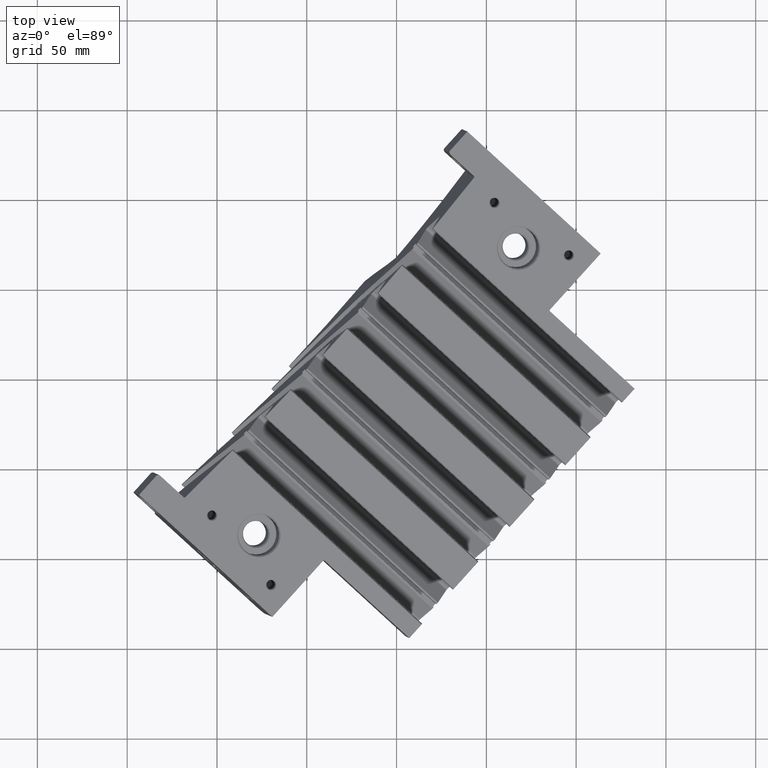
[diagram: clean part render]
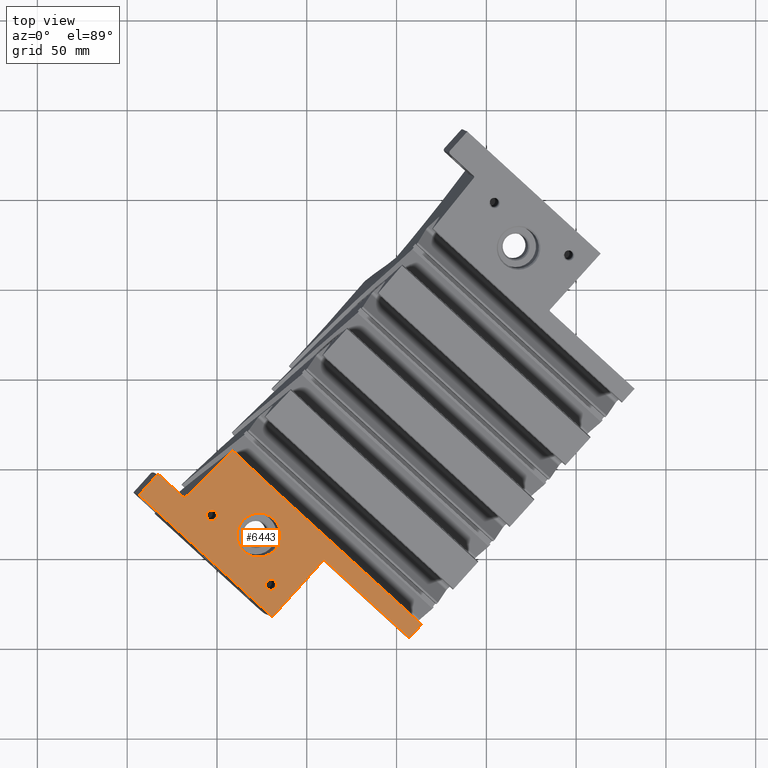
[diagram: same view with one face highlighted and labeled with its STEP entity id]
A machine part, top view. The second image highlights one B-rep face of the part: STEP entity #6443.
In plain terms, the highlighted planar face has unit normal (-0.1313, 0.074, -0.9886).
Its self-contained STEP definition (entity closure, byte-faithful):
#12=CARTESIAN_POINT('',(8.753336438268E1,-3.298400474719E1,-4.344912789584E0));
#13=DIRECTION('',(-1.313055912949E-1,7.400472631934E-2,-9.885758150881E-1));
#14=DIRECTION('',(6.696621439939E-1,7.419141415703E-1,-3.340687712718E-2));
#15=AXIS2_PLACEMENT_3D('',#12,#13,#14);
#17=CARTESIAN_POINT('',(8.753336438268E1,-3.298400474719E1,-4.344912789584E0));
#18=DIRECTION('',(-1.313055912949E-1,7.400472631934E-2,-9.885758150881E-1));
#19=DIRECTION('',(-6.696621439945E-1,-7.419141415698E-1,3.340687712730E-2));
#20=AXIS2_PLACEMENT_3D('',#17,#18,#19);
#22=CARTESIAN_POINT('',(8.650376766333E1,-3.255251144605E1,-4.175814805190E0));
#23=DIRECTION('',(-1.313055912949E-1,7.400472631934E-2,-9.885758150881E-1));
#24=DIRECTION('',(-6.696621439944E-1,-7.419141415699E-1,3.340687712727E-2));
#25=AXIS2_PLACEMENT_3D('',#22,#23,#24);
#27=CARTESIAN_POINT('',(8.650376766333E1,-3.255251144605E1,-4.175814805190E0));
#28=DIRECTION('',(-1.313055912949E-1,7.400472631934E-2,-9.885758150881E-1));
#29=DIRECTION('',(6.696621439947E-1,7.419141415696E-1,-3.340687712733E-2));
#30=AXIS2_PLACEMENT_3D('',#27,#28,#29);
#32=CARTESIAN_POINT('',(8.779828434819E1,-3.407078660061E1,-4.461414363391E0));
#33=DIRECTION('',(-1.313055912949E-1,7.400472631934E-2,-9.885758150881E-1));
#34=DIRECTION('',(-6.696621439950E-1,-7.419141415694E-1,3.340687712739E-2));
#35=AXIS2_PLACEMENT_3D('',#32,#33,#34);
#37=CARTESIAN_POINT('',(8.779828434819E1,-3.407078660061E1,-4.461414363391E0));
#38=DIRECTION('',(-1.313055912949E-1,7.400472631934E-2,-9.885758150881E-1));
#39=DIRECTION('',(6.696621439947E-1,7.419141415696E-1,-3.340687712733E-2));
#40=AXIS2_PLACEMENT_3D('',#37,#38,#39);
#128=DIRECTION('',(-7.309661104288E-1,6.663983095875E-1,1.469756387416E-1));
#129=VECTOR('',#128,7.038443905521E-1);
#130=CARTESIAN_POINT('',(8.588194484511E1,-3.215467208433E1,-4.063519157773E0));
#131=LINE('',#130,#129);
#132=CARTESIAN_POINT('',(8.695618020416E1,-3.112617170631E1,-4.129216370849E0));
#133=CARTESIAN_POINT('',(8.678614468745E1,-3.129857684639E1,-4.119537984315E0));
#134=CARTESIAN_POINT('',(8.644388152746E1,-3.164225064717E1,-4.099793656507E0));
#135=CARTESIAN_POINT('',(8.609712421940E1,-3.198367046587E1,-4.079298753796E0));
#136=CARTESIAN_POINT('',(8.592262389660E1,-3.215379901717E1,-4.068856913089E0));
#138=CARTESIAN_POINT('',(8.784601561369E1,-3.196301894637E1,-4.310046527079E0));
#139=CARTESIAN_POINT('',(8.781019330036E1,-3.193005883223E1,-4.302821108298E0));
#140=CARTESIAN_POINT('',(8.767895954602E1,-3.180926216076E1,-4.276345470156E0));
#141=CARTESIAN_POINT('',(8.744832683244E1,-3.159565521732E1,-4.229725050467E0));
#142=CARTESIAN_POINT('',(8.718015866429E1,-3.134185294332E1,-4.175098235428E0));
#143=CARTESIAN_POINT('',(8.701678143721E1,-3.118473684136E1,-4.141649790058E0));
#144=CARTESIAN_POINT('',(8.695618020416E1,-3.112617170631E1,-4.129216370849E0));
#146=DIRECTION('',(-7.309663976861E-1,6.663980287566E-1,1.469754834082E-1));
#147=VECTOR('',#146,4.454470248727E0);
#148=CARTESIAN_POINT('',(9.110208368501E1,-3.493146913928E1,-4.964744445213E0));
#149=LINE('',#148,#147);
#150=DIRECTION('',(-7.309661104288E-1,6.663983095875E-1,1.469756387416E-1));
#151=VECTOR('',#150,2.5325E0);
#152=CARTESIAN_POINT('',(9.083208160966E1,-3.523060260493E1,-4.951275076762E0));
#153=LINE('',#152,#151);
#154=DIRECTION('',(-6.696621439945E-1,-7.419141415698E-1,3.340687712729E-2));
#155=VECTOR('',#154,5.65E-1);
#156=CARTESIAN_POINT('',(8.528342075334E1,-3.169016232218E1,-3.949248227945E0));
#157=LINE('',#156,#155);
#158=CARTESIAN_POINT('',(8.532727871996E1,-3.173014622075E1,-3.958066766269E0));
#159=DIRECTION('',(1.313055912949E-1,-7.400472631934E-2,9.885758150881E-1));
#160=DIRECTION('',(6.696621439947E-1,7.419141415696E-1,-3.340687712733E-2));
#161=AXIS2_PLACEMENT_3D('',#158,#159,#160);
#428=DIRECTION('',(6.696621439945E-1,7.419141415698E-1,-3.340687712730E-2));
#429=VECTOR('',#428,1.6575E0);
#430=CARTESIAN_POINT('',(8.782892608370E1,-3.477493705051E1,-4.518275897334E0));
#431=LINE('',#430,#429);
#475=CARTESIAN_POINT('',(8.896082007068E1,-3.356520631015E1,-4.578057065335E0));
#476=DIRECTION('',(-1.313055912949E-1,7.400472631933E-2,-9.885758150881E-1));
#477=DIRECTION('',(-7.309661104268E-1,6.663983095897E-1,1.469756387415E-1));
#478=AXIS2_PLACEMENT_3D('',#475,#476,#477);
#748=DIRECTION('',(-6.696621439945E-1,-7.419141415698E-1,3.340687712730E-2));
#749=VECTOR('',#748,4.031914865822E-1);
#750=CARTESIAN_POINT('',(9.110208368501E1,-3.493146913928E1,-4.964744445213E0));
#751=LINE('',#750,#749);
#1277=CARTESIAN_POINT('',(8.695618020416E1,-3.112617170631E1,
-4.129216370849E0));
#1283=CARTESIAN_POINT('',(8.592262389660E1,-3.215379901717E1,
-4.068856913089E0));
#2397=DIRECTION('',(7.309661104288E-1,-6.663983095875E-1,-1.469756387416E-1));
#2398=VECTOR('',#2397,4.E0);
#2399=CARTESIAN_POINT('',(8.490506164198E1,-3.210934381216E1,
-3.930373342368E0));
#2400=LINE('',#2399,#2398);
#3340=CARTESIAN_POINT('',(8.592262389660E1,-3.215379901717E1,
-4.068856913089E0));
#3341=CARTESIAN_POINT('',(8.591871771969E1,-3.215760733229E1,
-4.068623173252E0));
#3342=CARTESIAN_POINT('',(8.591012099088E1,-3.216240484990E1,
-4.067840471945E0));
#3343=CARTESIAN_POINT('',(8.589450021941E1,-3.216269408672E1,
-4.065787326691E0));
#3344=CARTESIAN_POINT('',(8.588589285443E1,-3.215827135755E1,
-4.064312985536E0));
#3345=CARTESIAN_POINT('',(8.588194484511E1,-3.215467208433E1,
-4.063519157773E0));
#3369=CARTESIAN_POINT('',(8.588194484511E1,-3.215467208433E1,
-4.063519157773E0));
#5392=CARTESIAN_POINT('',(8.490506164198E1,-3.210934381216E1,
-3.930373342368E0));
#5393=CARTESIAN_POINT('',(8.782892608370E1,-3.477493705051E1,
-4.518275897334E0));
#5394=VERTEX_POINT('',#5392);
#5395=VERTEX_POINT('',#5393);
#5451=CARTESIAN_POINT('',(8.785686030393E1,-3.262560581294E1,
-4.361050760932E0));
#5452=CARTESIAN_POINT('',(8.720986846142E1,-3.334240368145E1,
-4.328774818236E0));
#5453=VERTEX_POINT('',#5451);
#5454=VERTEX_POINT('',#5452);
#5589=CARTESIAN_POINT('',(9.083208160966E1,-3.523060260493E1,
-4.951275076762E0));
#5590=VERTEX_POINT('',#5589);
#5607=CARTESIAN_POINT('',(8.536745844860E1,-3.168563137226E1,
-3.960071178897E0));
#5608=CARTESIAN_POINT('',(8.528342075334E1,-3.169016232218E1,
-3.949248227945E0));
#5609=VERTEX_POINT('',#5607);
#5610=VERTEX_POINT('',#5608);
#5621=CARTESIAN_POINT('',(8.642314168088E1,-3.264183642447E1,
-4.171792684015E0));
#5622=CARTESIAN_POINT('',(8.658439364578E1,-3.246318646763E1,
-4.179836926364E0));
#5623=VERTEX_POINT('',#5621);
#5624=VERTEX_POINT('',#5622);
#5629=CARTESIAN_POINT('',(8.771765836573E1,-3.416011157903E1,
-4.457392242216E0));
#5630=CARTESIAN_POINT('',(8.787891033064E1,-3.398146162219E1,
-4.465436484565E0));
#5631=VERTEX_POINT('',#5629);
#5632=VERTEX_POINT('',#5630);
#5685=CARTESIAN_POINT('',(8.898090993500E1,-3.354294888590E1,
-4.579059271649E0));
#5686=VERTEX_POINT('',#5685);
#5687=CARTESIAN_POINT('',(8.893889108737E1,-3.354521436086E1,
-4.573647796173E0));
#5688=VERTEX_POINT('',#5687);
#5832=VERTEX_POINT('',#3369);
#5833=VERTEX_POINT('',#1283);
#5855=VERTEX_POINT('',#1277);
#5858=VERTEX_POINT('',#138);
#5860=CARTESIAN_POINT('',(9.110208368501E1,-3.493146913928E1,
-4.964744445213E0));
#5862=VERTEX_POINT('',#5860);
#6394=CARTESIAN_POINT('',(9.690830299900E1,-2.851375952336E1,
-5.255514472258E0));
#6395=DIRECTION('',(-1.313055912949E-1,7.400472631934E-2,-9.885758150881E-1));
#6396=DIRECTION('',(-7.309661104288E-1,6.663983095875E-1,1.469756387416E-1));
#6397=AXIS2_PLACEMENT_3D('',#6394,#6395,#6396);
#6398=PLANE('',#6397);
#6400=ORIENTED_EDGE('',*,*,#6399,.F.);
#6402=ORIENTED_EDGE('',*,*,#6401,.F.);
#6404=ORIENTED_EDGE('',*,*,#6403,.F.);
#6406=ORIENTED_EDGE('',*,*,#6405,.F.);
#6408=ORIENTED_EDGE('',*,*,#6407,.F.);
#6410=ORIENTED_EDGE('',*,*,#6409,.T.);
#6412=ORIENTED_EDGE('',*,*,#6411,.T.);
#6414=ORIENTED_EDGE('',*,*,#6413,.F.);
#6416=ORIENTED_EDGE('',*,*,#6415,.F.);
#6418=ORIENTED_EDGE('',*,*,#6417,.F.);
#6420=ORIENTED_EDGE('',*,*,#6419,.F.);
#6422=ORIENTED_EDGE('',*,*,#6421,.F.);
#6423=EDGE_LOOP('',(#6400,#6402,#6404,#6406,#6408,#6410,#6412,#6414,#6416,#6418,
#6420,#6422));
#6424=FACE_OUTER_BOUND('',#6423,.F.);
#6426=ORIENTED_EDGE('',*,*,#6425,.F.);
#6428=ORIENTED_EDGE('',*,*,#6427,.F.);
#6429=EDGE_LOOP('',(#6426,#6428));
#6430=FACE_BOUND('',#6429,.F.);
#6432=ORIENTED_EDGE('',*,*,#6431,.F.);
#6434=ORIENTED_EDGE('',*,*,#6433,.F.);
#6435=EDGE_LOOP('',(#6432,#6434));
#6436=FACE_BOUND('',#6435,.F.);
#6438=ORIENTED_EDGE('',*,*,#6437,.F.);
#6440=ORIENTED_EDGE('',*,*,#6439,.F.);
#6441=EDGE_LOOP('',(#6438,#6440));
#6442=FACE_BOUND('',#6441,.F.);
#6443=ADVANCED_FACE('',(#6424,#6430,#6436,#6442),#6398,.F.);
#16=CIRCLE('',#15,4.830733290750E-1);
#21=CIRCLE('',#20,4.830733290752E-1);
#26=CIRCLE('',#25,1.203979994656E-1);
#31=CIRCLE('',#30,1.203979994656E-1);
#36=CIRCLE('',#35,1.203979994656E-1);
#41=CIRCLE('',#40,1.203979994656E-1);
#137=B_SPLINE_CURVE_WITH_KNOTS('',3,(#132,#133,#134,#135,#136),.UNSPECIFIED.,
.F.,.F.,(4,1,4),(0.E0,5.E-1,1.E0),.UNSPECIFIED.);
#145=B_SPLINE_CURVE_WITH_KNOTS('',3,(#138,#139,#140,#141,#142,#143,#144),
.UNSPECIFIED.,.F.,.F.,(4,1,1,1,4),(0.E0,1.264592233721E-1,4.616793886711E-1,
7.968995539701E-1,1.E0),.UNSPECIFIED.);
#162=CIRCLE('',#161,6.E-2);
#479=CIRCLE('',#478,3.E-2);
#3346=B_SPLINE_CURVE_WITH_KNOTS('',3,(#3340,#3341,#3342,#3343,#3344,#3345),
.UNSPECIFIED.,.F.,.F.,(4,1,1,4),(0.E0,3.333333333333E-1,6.666666666667E-1,1.E0),
.UNSPECIFIED.);
#6399=EDGE_CURVE('',#5832,#5609,#131,.T.);
#6401=EDGE_CURVE('',#5833,#5832,#3346,.T.);
#6403=EDGE_CURVE('',#5855,#5833,#137,.T.);
#6405=EDGE_CURVE('',#5858,#5855,#145,.T.);
#6407=EDGE_CURVE('',#5862,#5858,#149,.T.);
#6409=EDGE_CURVE('',#5862,#5590,#751,.T.);
#6411=EDGE_CURVE('',#5590,#5686,#153,.T.);
#6413=EDGE_CURVE('',#5688,#5686,#479,.T.);
#6415=EDGE_CURVE('',#5395,#5688,#431,.T.);
#6417=EDGE_CURVE('',#5394,#5395,#2400,.T.);
#6419=EDGE_CURVE('',#5610,#5394,#157,.T.);
#6421=EDGE_CURVE('',#5609,#5610,#162,.T.);
#6425=EDGE_CURVE('',#5453,#5454,#16,.T.);
#6427=EDGE_CURVE('',#5454,#5453,#21,.T.);
#6431=EDGE_CURVE('',#5623,#5624,#26,.T.);
#6433=EDGE_CURVE('',#5624,#5623,#31,.T.);
#6437=EDGE_CURVE('',#5631,#5632,#36,.T.);
#6439=EDGE_CURVE('',#5632,#5631,#41,.T.);